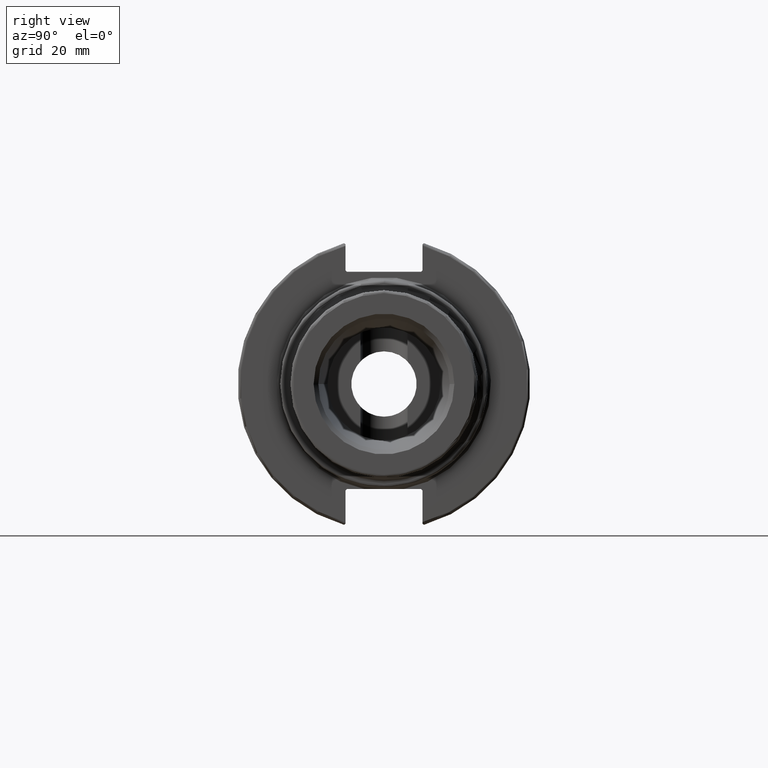
[diagram: clean part render]
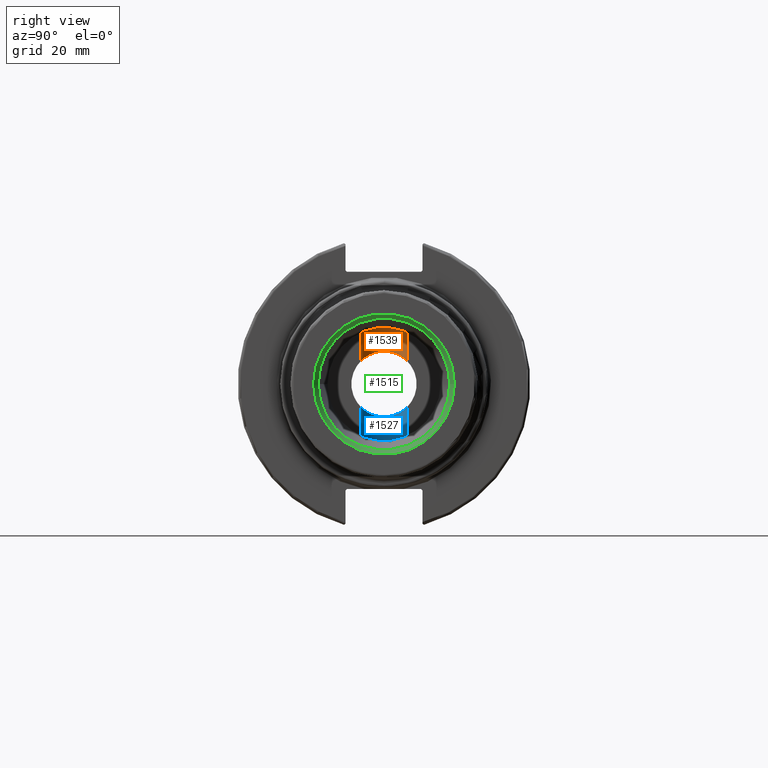
[diagram: same view with three faces highlighted in distinct colors, each labeled with its STEP entity id]
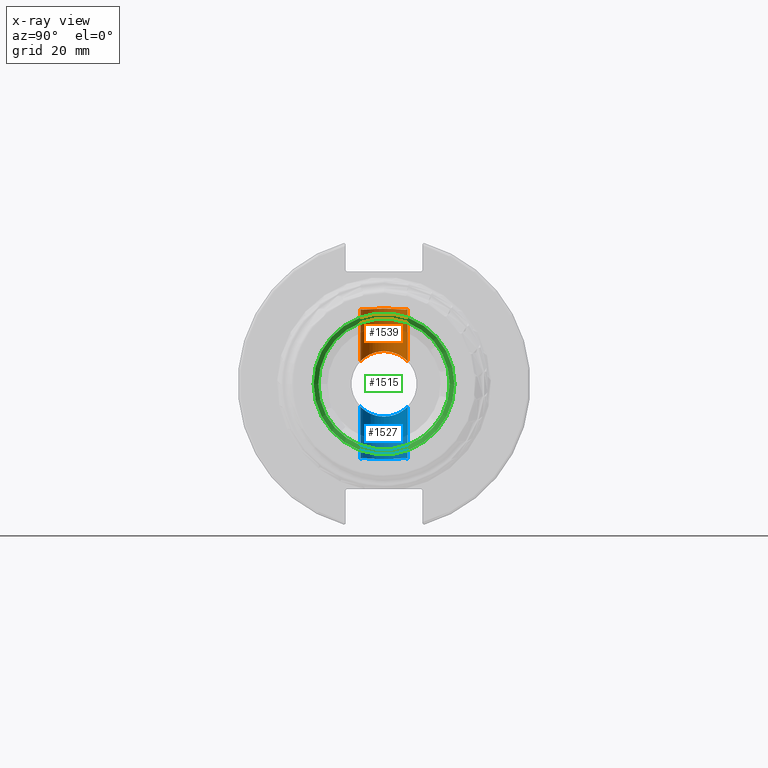
[diagram: x-ray of the same camera — body ghosted, the three highlighted faces saturated]
A machine part, right view with three faces highlighted in distinct colors.
The next image is the same camera in x-ray (body ghosted, the three faces saturated) — at least one of them is partly hidden behind the body in this view.
Their STEP definitions:

[orange] entity #1539 — the highlighted cylindrical surface (edge-blend (fillet) strip) has radius 7.95 mm, axis along (0, 0, 1).
#42=CYLINDRICAL_SURFACE('',#1642,7.95);
#84=B_SPLINE_CURVE_WITH_KNOTS('',3,(#2726,#2727,#2728,#2729,#2730,#2731,
#2732,#2733,#2734,#2735,#2736,#2737,#2738,#2739,#2740,#2741,#2742),
 .UNSPECIFIED.,.F.,.F.,(4,1,1,1,1,1,1,1,1,1,1,1,1,1,4),(-2.3542121492027,
-2.18457451843324,-2.01493688766378,-1.84529925689432,-1.67566162612486,
-1.5060239953554,-1.33638636458593,-0.997111103047011,-0.82747347227755,
-0.742654656892819,-0.700245249200453,-0.657835841508088,-0.488198210738626,
-0.318560579969164,0.0207146815697586),.UNSPECIFIED.);
#92=B_SPLINE_CURVE_WITH_KNOTS('',3,(#2959,#2960,#2961,#2962,#2963,#2964,
#2965,#2966,#2967,#2968,#2969,#2970,#2971,#2972,#2973,#2974,#2975,#2976),
 .UNSPECIFIED.,.F.,.F.,(4,2,2,2,2,2,2,2,4),(0.,0.317880681013363,0.635761362026725,
0.948189989168064,1.2606186163094,1.57304724345074,1.88547587059208,2.20335655160544,
2.52123723261881),.UNSPECIFIED.);
#197=FACE_OUTER_BOUND('',#288,.T.);
#288=EDGE_LOOP('',(#1150,#1151,#1152,#1153));
#387=LINE('',#2948,#493);
#392=LINE('',#2958,#498);
#493=VECTOR('',#1823,10.);
#498=VECTOR('',#1830,10.);
#673=VERTEX_POINT('',#2723);
#674=VERTEX_POINT('',#2725);
#681=VERTEX_POINT('',#2947);
#685=VERTEX_POINT('',#2957);
#844=EDGE_CURVE('',#673,#674,#84,.T.);
#859=EDGE_CURVE('',#674,#681,#387,.T.);
#864=EDGE_CURVE('',#685,#673,#392,.T.);
#865=EDGE_CURVE('',#681,#685,#92,.T.);
#1150=ORIENTED_EDGE('',*,*,#844,.F.);
#1151=ORIENTED_EDGE('',*,*,#864,.F.);
#1152=ORIENTED_EDGE('',*,*,#865,.F.);
#1153=ORIENTED_EDGE('',*,*,#859,.F.);
#1539=ADVANCED_FACE('',(#197),#42,.F.);
#1642=AXIS2_PLACEMENT_3D('',#2956,#1828,#1829);
#1823=DIRECTION('',(0.,0.,-1.));
#1828=DIRECTION('center_axis',(0.,0.,1.));
#1829=DIRECTION('ref_axis',(0.,1.,0.));
#1830=DIRECTION('',(0.,0.,1.));
#2723=CARTESIAN_POINT('',(-51.93,-7.95000000000001,25.2609721771775));
#2725=CARTESIAN_POINT('',(-51.93,7.94999999999999,25.2609721771775));
#2726=CARTESIAN_POINT('Ctrl Pts',(-51.93,-7.95000000000001,25.2609721771775));
#2727=CARTESIAN_POINT('Ctrl Pts',(-52.5126453943997,-7.95000000000001,25.1750999966296));
#2728=CARTESIAN_POINT('Ctrl Pts',(-53.7097302583282,-7.8204276638496,25.0372335517346));
#2729=CARTESIAN_POINT('Ctrl Pts',(-55.4812021603627,-7.19785767217282,24.9551857680108));
#2730=CARTESIAN_POINT('Ctrl Pts',(-57.0398778474733,-6.17512786235883,24.987404925883));
#2731=CARTESIAN_POINT('Ctrl Pts',(-58.2334970228263,-4.94253294175991,25.0758848005291));
#2732=CARTESIAN_POINT('Ctrl Pts',(-59.1875112215754,-3.41579674952799,25.1867123566312));
#2733=CARTESIAN_POINT('Ctrl Pts',(-59.9434078002043,-1.12241782609759,25.3019895982744));
#2734=CARTESIAN_POINT('Ctrl Pts',(-59.9496698855347,1.12175952456859,25.3018119226253));
#2735=CARTESIAN_POINT('Ctrl Pts',(-59.2823469034234,3.13247404252426,25.2010653647882));
#2736=CARTESIAN_POINT('Ctrl Pts',(-58.7830310888949,4.04622801212723,25.1399696554209));
#2737=CARTESIAN_POINT('Ctrl Pts',(-58.4587038492133,4.54289805252752,25.1049217267031));
#2738=CARTESIAN_POINT('Ctrl Pts',(-57.933280851382,5.25249082422073,25.0536163196631));
#2739=CARTESIAN_POINT('Ctrl Pts',(-57.0427853116035,6.17357674182244,24.9879454135959));
#2740=CARTESIAN_POINT('Ctrl Pts',(-54.9588460254199,7.54203441374476,24.9430660433053));
#2741=CARTESIAN_POINT('Ctrl Pts',(-53.0952907657155,7.94999999999999,25.0892278194838));
#2742=CARTESIAN_POINT('Ctrl Pts',(-51.93,7.94999999999999,25.2609721771775));
#2947=CARTESIAN_POINT('',(-51.93,7.94999999999999,7.58147150954221));
#2948=CARTESIAN_POINT('',(-51.93,7.94999999999999,0.));
#2956=CARTESIAN_POINT('Origin',(-51.93,-1.04987356066941E-14,0.));
#2957=CARTESIAN_POINT('',(-51.93,-7.95000000000001,7.58147150954219));
#2958=CARTESIAN_POINT('',(-51.93,-7.95000000000001,0.));
#2959=CARTESIAN_POINT('Ctrl Pts',(-51.93,7.94999999999999,7.58147150954221));
#2960=CARTESIAN_POINT('Ctrl Pts',(-52.9896022700446,7.94999999999999,7.58147150954221));
#2961=CARTESIAN_POINT('Ctrl Pts',(-54.0626688581393,7.73016809447088,7.82475473599814));
#2962=CARTESIAN_POINT('Ctrl Pts',(-55.9954798140016,6.91199544232475,8.55608431339979));
#2963=CARTESIAN_POINT('Ctrl Pts',(-56.8609883285132,6.31200949235294,9.02694292246199));
#2964=CARTESIAN_POINT('Ctrl Pts',(-58.2301663665618,4.94283145430433,9.84243932186148));
#2965=CARTESIAN_POINT('Ctrl Pts',(-58.8375045702261,4.07550108173924,10.2520289342076));
#2966=CARTESIAN_POINT('Ctrl Pts',(-59.6633252235024,2.12579740737381,10.8256544785616));
#2967=CARTESIAN_POINT('Ctrl Pts',(-59.88,1.04142875713778,10.9855));
#2968=CARTESIAN_POINT('Ctrl Pts',(-59.88,-1.04142875713781,10.9855));
#2969=CARTESIAN_POINT('Ctrl Pts',(-59.6633252235024,-2.12579740737383,10.8256544785616));
#2970=CARTESIAN_POINT('Ctrl Pts',(-58.8375045702261,-4.07550108173926,10.2520289342076));
#2971=CARTESIAN_POINT('Ctrl Pts',(-58.2301663665618,-4.94283145430435,9.84243932186147));
#2972=CARTESIAN_POINT('Ctrl Pts',(-56.8609883285132,-6.31200949235296,9.02694292246197));
#2973=CARTESIAN_POINT('Ctrl Pts',(-55.9954798140016,-6.91199544232477,8.55608431339977));
#2974=CARTESIAN_POINT('Ctrl Pts',(-54.0626688581393,-7.7301680944709,7.82475473599812));
#2975=CARTESIAN_POINT('Ctrl Pts',(-52.9896022700446,-7.95000000000001,7.58147150954219));
#2976=CARTESIAN_POINT('Ctrl Pts',(-51.93,-7.95000000000001,7.58147150954219));

[blue] entity #1527 — the highlighted cylindrical surface (edge-blend (fillet) strip) has radius 7.95 mm, axis along (0, 0, 1).
#41=CYLINDRICAL_SURFACE('',#1635,7.95);
#58=B_SPLINE_CURVE_WITH_KNOTS('',3,(#2240,#2241,#2242,#2243,#2244,#2245,
#2246,#2247,#2248,#2249,#2250,#2251,#2252,#2253,#2254,#2255,#2256,#2257,
#2258,#2259,#2260),.UNSPECIFIED.,.F.,.F.,(4,2,1,1,1,1,1,1,1,1,1,1,1,1,1,
2,4),(-0.0207146813568596,0.,0.233349746784585,0.466699493569169,0.700049240353754,
0.816724113746046,0.875061550442192,0.933398987138338,1.10841129722678,
1.16674873392292,1.40009848070751,1.5167733540998,1.63344822749209,1.86679797427668,
2.10014772106126,2.33349746784585,2.35421214941561),.UNSPECIFIED.);
#74=B_SPLINE_CURVE_WITH_KNOTS('',3,(#2556,#2557,#2558,#2559,#2560,#2561,
#2562,#2563,#2564,#2565),.UNSPECIFIED.,.F.,.F.,(4,2,2,2,4),(-1.2606186163094,
-0.948189989168064,-0.635761362026726,-0.317880681013363,0.),
 .UNSPECIFIED.);
#75=B_SPLINE_CURVE_WITH_KNOTS('',3,(#2566,#2567,#2568,#2569,#2570,#2571,
#2572,#2573,#2574,#2575),.UNSPECIFIED.,.F.,.F.,(4,2,2,2,4),(-2.52123723261881,
-2.20335655160544,-1.88547587059208,-1.57304724345074,-1.2606186163094),
 .UNSPECIFIED.);
#185=FACE_OUTER_BOUND('',#274,.T.);
#274=EDGE_LOOP('',(#1078,#1079,#1080,#1081,#1082));
#368=LINE('',#2544,#474);
#373=LINE('',#2554,#479);
#474=VECTOR('',#1790,10.);
#479=VECTOR('',#1797,10.);
#638=VERTEX_POINT('',#2237);
#639=VERTEX_POINT('',#2239);
#653=VERTEX_POINT('',#2543);
#657=VERTEX_POINT('',#2553);
#658=VERTEX_POINT('',#2555);
#796=EDGE_CURVE('',#638,#639,#58,.T.);
#819=EDGE_CURVE('',#639,#653,#368,.T.);
#824=EDGE_CURVE('',#657,#638,#373,.T.);
#825=EDGE_CURVE('',#658,#657,#74,.T.);
#826=EDGE_CURVE('',#653,#658,#75,.T.);
#1078=ORIENTED_EDGE('',*,*,#796,.F.);
#1079=ORIENTED_EDGE('',*,*,#824,.F.);
#1080=ORIENTED_EDGE('',*,*,#825,.F.);
#1081=ORIENTED_EDGE('',*,*,#826,.F.);
#1082=ORIENTED_EDGE('',*,*,#819,.F.);
#1527=ADVANCED_FACE('',(#185),#41,.F.);
#1635=AXIS2_PLACEMENT_3D('',#2552,#1795,#1796);
#1790=DIRECTION('',(0.,0.,1.));
#1795=DIRECTION('center_axis',(0.,0.,1.));
#1796=DIRECTION('ref_axis',(0.,1.,0.));
#1797=DIRECTION('',(0.,0.,-1.));
#2237=CARTESIAN_POINT('',(-51.93,7.94999999999999,-25.2609721771775));
#2239=CARTESIAN_POINT('',(-51.93,-7.95000000000001,-25.2609721771775));
#2240=CARTESIAN_POINT('Ctrl Pts',(-51.93,7.94999999999999,-25.2609721771775));
#2241=CARTESIAN_POINT('Ctrl Pts',(-52.0011476199844,7.94999999999999,-25.2504862086492));
#2242=CARTESIAN_POINT('Ctrl Pts',(-52.0720860669578,7.94908073247766,-25.2403100906329));
#2243=CARTESIAN_POINT('Ctrl Pts',(-52.9393683599759,7.92514941245733,-25.1194457368355));
#2244=CARTESIAN_POINT('Ctrl Pts',(-54.626108363313,7.63679752835783,-24.9598152906176));
#2245=CARTESIAN_POINT('Ctrl Pts',(-56.9103443196966,6.35913032547881,-24.9689550850607));
#2246=CARTESIAN_POINT('Ctrl Pts',(-58.2621732532284,4.92049933251965,-25.0798235644958));
#2247=CARTESIAN_POINT('Ctrl Pts',(-58.9999743802418,3.67975435063617,-25.1658779350188));
#2248=CARTESIAN_POINT('Ctrl Pts',(-59.3290670032444,2.92883646545805,-25.210071515913));
#2249=CARTESIAN_POINT('Ctrl Pts',(-59.6694738902682,1.96679352598026,-25.2587076671583));
#2250=CARTESIAN_POINT('Ctrl Pts',(-59.8517126828758,0.959675691959184,-25.287982141749));
#2251=CARTESIAN_POINT('Ctrl Pts',(-59.908224758388,-0.572184933321683,-25.2971306165149));
#2252=CARTESIAN_POINT('Ctrl Pts',(-59.7065799852046,-1.96986632999028,-25.2635524338961));
#2253=CARTESIAN_POINT('Ctrl Pts',(-59.1038500642964,-3.50254904841569,-25.1779327594762));
#2254=CARTESIAN_POINT('Ctrl Pts',(-58.2627617137376,-4.9195555313616,-25.0798198430814));
#2255=CARTESIAN_POINT('Ctrl Pts',(-56.9097712089497,-6.35922610475114,-24.9688720139231));
#2256=CARTESIAN_POINT('Ctrl Pts',(-54.6263369632218,-7.63647680622481,-24.9598187958141));
#2257=CARTESIAN_POINT('Ctrl Pts',(-52.9393322076228,-7.9251539997022,-25.1194403422989));
#2258=CARTESIAN_POINT('Ctrl Pts',(-52.072087854989,-7.94908027846752,-25.2403103338278));
#2259=CARTESIAN_POINT('Ctrl Pts',(-52.0011476193062,-7.95000000000001,-25.2504862087491));
#2260=CARTESIAN_POINT('Ctrl Pts',(-51.93,-7.95000000000001,-25.2609721771775));
#2543=CARTESIAN_POINT('',(-51.93,-7.95000000000001,-7.58147150954219));
#2544=CARTESIAN_POINT('',(-51.93,-7.95000000000001,0.));
#2552=CARTESIAN_POINT('Origin',(-51.93,-1.04987356066941E-14,0.));
#2553=CARTESIAN_POINT('',(-51.93,7.94999999999999,-7.58147150954221));
#2554=CARTESIAN_POINT('',(-51.93,7.94999999999999,0.));
#2555=CARTESIAN_POINT('',(-59.88,-6.22378299372744E-15,-10.9855));
#2556=CARTESIAN_POINT('Ctrl Pts',(-59.88,-1.11022302462516E-14,-10.9855));
#2557=CARTESIAN_POINT('Ctrl Pts',(-59.88,1.04142875713778,-10.9855));
#2558=CARTESIAN_POINT('Ctrl Pts',(-59.6633252235024,2.12579740737381,-10.8256544785616));
#2559=CARTESIAN_POINT('Ctrl Pts',(-58.8375045702261,4.07550108173924,-10.2520289342076));
#2560=CARTESIAN_POINT('Ctrl Pts',(-58.2301663665618,4.94283145430432,-9.84243932186148));
#2561=CARTESIAN_POINT('Ctrl Pts',(-56.8609883285132,6.31200949235294,-9.02694292246199));
#2562=CARTESIAN_POINT('Ctrl Pts',(-55.9954798140016,6.91199544232475,-8.55608431339979));
#2563=CARTESIAN_POINT('Ctrl Pts',(-54.0626688581393,7.73016809447088,-7.82475473599814));
#2564=CARTESIAN_POINT('Ctrl Pts',(-52.9896022700446,7.94999999999999,-7.58147150954221));
#2565=CARTESIAN_POINT('Ctrl Pts',(-51.93,7.94999999999999,-7.58147150954221));
#2566=CARTESIAN_POINT('Ctrl Pts',(-51.93,-7.95000000000001,-7.58147150954219));
#2567=CARTESIAN_POINT('Ctrl Pts',(-52.9896022700446,-7.95000000000001,-7.58147150954219));
#2568=CARTESIAN_POINT('Ctrl Pts',(-54.0626688581393,-7.7301680944709,-7.82475473599812));
#2569=CARTESIAN_POINT('Ctrl Pts',(-55.9954798140016,-6.91199544232477,-8.55608431339977));
#2570=CARTESIAN_POINT('Ctrl Pts',(-56.8609883285132,-6.31200949235296,-9.02694292246197));
#2571=CARTESIAN_POINT('Ctrl Pts',(-58.2301663665618,-4.94283145430435,-9.84243932186147));
#2572=CARTESIAN_POINT('Ctrl Pts',(-58.8375045702261,-4.07550108173926,-10.2520289342076));
#2573=CARTESIAN_POINT('Ctrl Pts',(-59.6633252235024,-2.12579740737383,-10.8256544785616));
#2574=CARTESIAN_POINT('Ctrl Pts',(-59.88,-1.04142875713781,-10.9855));
#2575=CARTESIAN_POINT('Ctrl Pts',(-59.88,-1.11022302462516E-14,-10.9855));

[green] entity #1515 — the highlighted conical surface has half-angle 30 deg.
#173=FACE_OUTER_BOUND('',#261,.T.);
#261=EDGE_LOOP('',(#1027,#1028,#1029,#1030,#1031));
#358=LINE('',#2143,#464);
#464=VECTOR('',#1768,22.8738730161085);
#570=CIRCLE('',#1627,22.0878916873908);
#571=CIRCLE('',#1628,22.0878916873908);
#572=CIRCLE('',#1629,23.6598543448262);
#632=VERTEX_POINT('',#2138);
#633=VERTEX_POINT('',#2139);
#634=VERTEX_POINT('',#2142);
#788=EDGE_CURVE('',#632,#633,#570,.T.);
#789=EDGE_CURVE('',#633,#632,#571,.T.);
#790=EDGE_CURVE('',#632,#634,#358,.T.);
#791=EDGE_CURVE('',#634,#634,#572,.T.);
#1027=ORIENTED_EDGE('',*,*,#788,.T.);
#1028=ORIENTED_EDGE('',*,*,#789,.T.);
#1029=ORIENTED_EDGE('',*,*,#790,.T.);
#1030=ORIENTED_EDGE('',*,*,#791,.T.);
#1031=ORIENTED_EDGE('',*,*,#790,.F.);
#1505=CONICAL_SURFACE('',#1626,22.8738730161085,0.523598775598298);
#1515=ADVANCED_FACE('',(#173),#1505,.F.);
#1626=AXIS2_PLACEMENT_3D('',#2137,#1762,#1763);
#1627=AXIS2_PLACEMENT_3D('',#2140,#1764,#1765);
#1628=AXIS2_PLACEMENT_3D('',#2141,#1766,#1767);
#1629=AXIS2_PLACEMENT_3D('',#2144,#1769,#1770);
#1762=DIRECTION('center_axis',(1.,0.,4.96743585446729E-16));
#1763=DIRECTION('ref_axis',(0.,-1.,-2.95641514620493E-17));
#1764=DIRECTION('center_axis',(-1.,0.,0.));
#1765=DIRECTION('ref_axis',(0.,-1.,-6.12323399573676E-17));
#1766=DIRECTION('center_axis',(-1.,0.,0.));
#1767=DIRECTION('ref_axis',(0.,-1.,-6.12323399573676E-17));
#1768=DIRECTION('',(0.866025403784439,0.5,3.83742299937491E-16));
#1769=DIRECTION('center_axis',(1.,0.,0.));
#1770=DIRECTION('ref_axis',(0.,-1.,0.));
#2137=CARTESIAN_POINT('Origin',(101.75864040486,0.,-6.76246646371914E-16));
#2138=CARTESIAN_POINT('',(100.397280809721,22.0878916873908,-2.70498658548766E-15));
#2139=CARTESIAN_POINT('',(100.397280809721,-22.0878916873908,-2.70498658548766E-15));
#2140=CARTESIAN_POINT('Origin',(100.397280809721,0.,-1.35249329274383E-15));
#2141=CARTESIAN_POINT('Origin',(100.397280809721,0.,-1.35249329274383E-15));
#2142=CARTESIAN_POINT('',(103.12,23.6598543448262,2.89749648916839E-15));
#2143=CARTESIAN_POINT('',(101.75864040486,22.8738730161085,-2.80124153732803E-15));
#2144=CARTESIAN_POINT('Origin',(103.12,0.,0.));